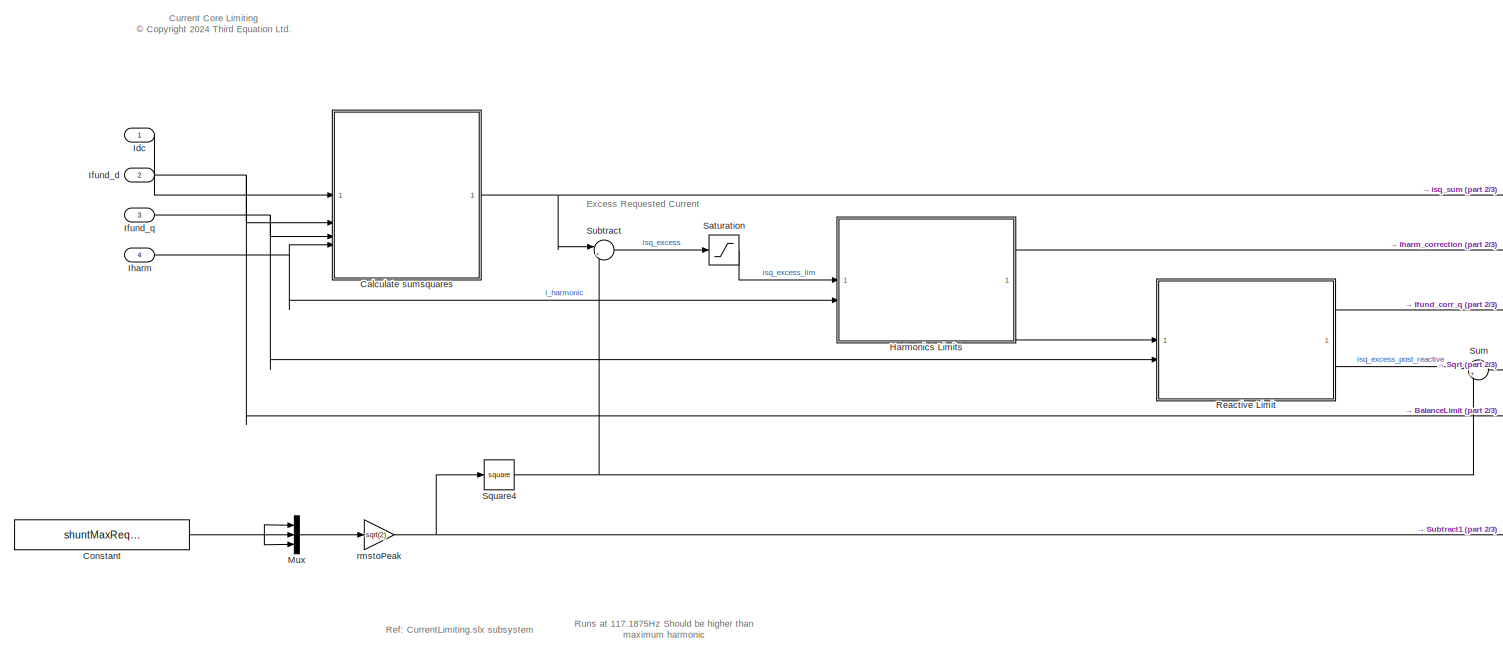
[diagram: root canvas - part 1/3, center side, full height]
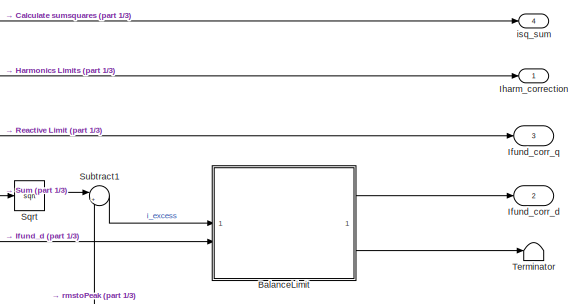
[diagram: root canvas - part 2/3, middle right region]
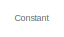
[diagram: root canvas - part 3/3, bottom left region]
MODEL slx_2df82c6ad651
KIND model
BLOCK [SubSystem] BalanceLimit
  ReferencedSubsystem = BalanceLimit
  TreatAsAtomicUnit = on
BLOCK [SubSystem] Calculate sumsquares
  ReferencedSubsystem = Calculate_sumsquares
BLOCK [Constant] Constant
  OutDataTypeStr = single
  Value = shuntMaxRequestedCurrentrms
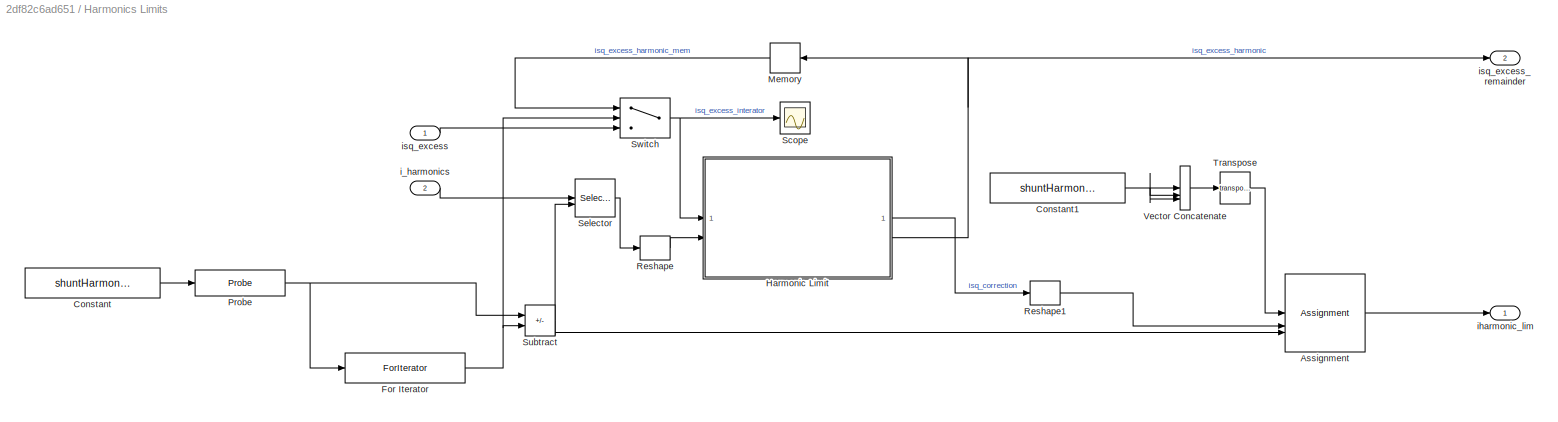
BLOCK [SubSystem] Harmonics Limits
  TreatAsAtomicUnit = on
BLOCK [Assignment] Harmonics Limits/Assignment
  DiagnosticForDimensions = Warning
  IndexOptions = Assign all,Index vector (port)
  Indices = 1,1
  NumberOfDimensions = 2
  OutputSizes = 3,nHarmonics
BLOCK [Constant] Harmonics Limits/Constant
  OutDataTypeStr = single
  Value = shuntHarmonicsCorrected
BLOCK [Constant] Harmonics Limits/Constant1
  OutDataTypeStr = single
  Value = shuntHarmonicsCorrected
BLOCK [ForIterator] Harmonics Limits/For Iterator
  IndexMode = Zero-based
  IterationLimit = nHarmonics
  IterationSource = external
  ResetStates = reset
BLOCK [SubSystem] Harmonics Limits/Harmonic  Limit
  PortSchema = {"entries":[{"content":{"sides":[{"content":{"connectorIds":["In1","In2"]},"type":"ConnectorPlacement.EquallySpacedRectSide","uuid":"a0edda42-1093-4dc5-a0fa-0d45baad0397"},{"content":{"connectorIds":["Out2","Out1"],"side":"RIGHT"},"type":"ConnectorPlacement.EquallySpacedRectSide","uuid":"9461ca2c-2d49-476d-8dbf-46c4cd226d1a"},{"content":{"side":"TOP"},"type":"ConnectorPlacement.EquallySpacedRectSi...<+235ch>
  ReferencedSubsystem = rmsLimit
  TreatAsAtomicUnit = on
BLOCK [Memory] Harmonics Limits/Memory
  InheritSampleTime = on
BLOCK [Probe] Harmonics Limits/Probe
  ProbeComplexSignal = off
  ProbeDimensionsDataType = single
  ProbeSampleTime = off
  ProbeSignalDimensions = on
  ProbeWidth = off
BLOCK [Reshape] Harmonics Limits/Reshape
BLOCK [Reshape] Harmonics Limits/Reshape1
  OutputDimensionality = Column vector (2-D)
BLOCK [Scope] Harmonics Limits/Scope
  Commented = on
  Floating = off
  NumInputPorts = 1
  ScopeSpecificationString = Simulink.scopes.TimeScopeBlockCfg('CurrentConfiguration', extmgr.ConfigurationSet(extmgr.Configuration('Core','General UI',true),extmgr.Configuration('Core','Source UI',true),extmgr.Configuration('Sources','WiredSimulink',true,'DataLoggingVariableName','ScopeData1'),extmgr.Configuration('Visuals','Time Domain',true,'SerializedDisplays',{struct('MinYLimReal','-1328.125','MaxYLimReal','11953.125','Y...<+1443ch>
BLOCK [Selector] Harmonics Limits/Selector
  IndexOptions = Select all,Index vector (port)
  Indices = [1 3],1
  InputPortWidth = 1
  NumberOfDimensions = 2
  OutputSizes = 1,1
BLOCK [Sum] Harmonics Limits/Subtract
  IconShape = rectangular
  Inputs = +-
BLOCK [Switch] Harmonics Limits/Switch
  Criteria = u2 ~= 0
  InputSameDT = off
  SaturateOnIntegerOverflow = off
  Threshold = 1
BLOCK [Math] Harmonics Limits/Transpose
  Operator = transpose
BLOCK [Concatenate] Harmonics Limits/Vector Concatenate
  ConcatenateDimension = 2
  Mode = Multidimensional array
  NumInputs = 3
BLOCK [Inport] Harmonics Limits/i_harmonics
  Port = 2
  PortDimensions = [3 shuntNumHarmonics]
BLOCK [Outport] Harmonics Limits/iharmonic_lim
  OutDataTypeStr = single
  PortDimensions = [3 shuntNumHarmonics]
BLOCK [Inport] Harmonics Limits/isq_excess
  PortDimensions = 3
BLOCK [Outport] Harmonics Limits/isq_excess_remainder
  OutDataTypeStr = single
  Port = 2
  PortDimensions = 3
BLOCK [Inport] Idc
  OutDataTypeStr = single
  PortDimensions = 3
  VarSizeSig = No
BLOCK [Outport] Ifund_corr_d
  OutDataTypeStr = single
  Port = 2
  PortDimensions = 3
BLOCK [Outport] Ifund_corr_q
  OutDataTypeStr = single
  Port = 3
  PortDimensions = 3
BLOCK [Inport] Ifund_d
  OutDataTypeStr = single
  Port = 2
  PortDimensions = 3
  VarSizeSig = No
BLOCK [Inport] Ifund_q
  OutDataTypeStr = single
  Port = 3
  PortDimensions = 3
  VarSizeSig = No
BLOCK [Inport] Iharm
  OutDataTypeStr = single
  Port = 4
  PortDimensions = [3 shuntNumHarmonics]
  VarSizeSig = No
BLOCK [Outport] Iharm_correction
  OutDataTypeStr = single
  PortDimensions = [3 shuntNumHarmonics]
BLOCK [Mux] Mux
  DisplayOption = bar
  Inputs = 3
BLOCK [SubSystem] Reactive  Limit
  ReferencedSubsystem = rmsLimit
  TreatAsAtomicUnit = on
BLOCK [Saturate] Saturation
  LowerLimit = 0
  UpperLimit = inf
BLOCK [Sqrt] Sqrt
BLOCK [Math] Square4
  Operator = square
BLOCK [Sum] Subtract
  Inputs = |+-
BLOCK [Sum] Subtract1
  Inputs = |+-
BLOCK [Sum] Sum
  Inputs = |++
BLOCK [Terminator] Terminator
BLOCK [Outport] isq_sum
  OutDataTypeStr = single
  Port = 4
  PortDimensions = 3
BLOCK [Gain] rmstoPeak
  Gain = sqrt(2)
ANNOTATION (root): Current Core Limiting <copyright redacted>
ANNOTATION (root): Excess Requested Current
ANNOTATION (root): Constant
ANNOTATION (root): Runs at 117.1875Hz Should be higher than maximum harmonic
ANNOTATION (root): Ref: CurrentLimiting.slx subsystem
LINE BalanceLimit:1 -> Ifund_corr_d:1
LINE BalanceLimit:2 -> Terminator:1
NET Calculate sumsquares:1 -> Subtract:1, isq_sum:1
NET Constant:1 -> Mux:1, Mux:2, Mux:3
LINE Harmonics Limits/Assignment:1 -> Harmonics Limits/iharmonic_lim:1
NET Harmonics Limits/Constant1:1 -> Harmonics Limits/Vector Concatenate:1, Harmonics Limits/Vector Concatenate:2, Harmonics Limits/Vector Concatenate:3
LINE Harmonics Limits/Constant:1 -> Harmonics Limits/Probe:1
NET Harmonics Limits/For Iterator:1 -> Harmonics Limits/Subtract:2, Harmonics Limits/Switch:2
LINE Harmonics Limits/Harmonic  Limit:1 -> Harmonics Limits/Reshape1:1
NET Harmonics Limits/Harmonic  Limit:2 -> Harmonics Limits/Memory:1, Harmonics Limits/isq_excess_remainder:1
LINE Harmonics Limits/Memory:1 -> Harmonics Limits/Switch:1
NET Harmonics Limits/Probe:1 -> Harmonics Limits/For Iterator:1, Harmonics Limits/Subtract:1
LINE Harmonics Limits/Reshape1:1 -> Harmonics Limits/Assignment:2
LINE Harmonics Limits/Reshape:1 -> Harmonics Limits/Harmonic  Limit:2
LINE Harmonics Limits/Selector:1 -> Harmonics Limits/Reshape:1
NET Harmonics Limits/Subtract:1 -> Harmonics Limits/Assignment:3, Harmonics Limits/Selector:2
NET Harmonics Limits/Switch:1 -> Harmonics Limits/Harmonic  Limit:1, Harmonics Limits/Scope:1
LINE Harmonics Limits/Transpose:1 -> Harmonics Limits/Assignment:1
LINE Harmonics Limits/Vector Concatenate:1 -> Harmonics Limits/Transpose:1
LINE Harmonics Limits/i_harmonics:1 -> Harmonics Limits/Selector:1
LINE Harmonics Limits/isq_excess:1 -> Harmonics Limits/Switch:3
LINE Harmonics Limits:1 -> Iharm_correction:1
LINE Harmonics Limits:2 -> Reactive  Limit:1
LINE Idc:1 -> Calculate sumsquares:1
NET Ifund_d:1 -> BalanceLimit:2, Calculate sumsquares:2
NET Ifund_q:1 -> Calculate sumsquares:3, Reactive  Limit:2
NET Iharm:1 -> Calculate sumsquares:4, Harmonics Limits:2
LINE Mux:1 -> rmstoPeak:1
LINE Reactive  Limit:1 -> Ifund_corr_q:1
LINE Reactive  Limit:2 -> Sum:1
LINE Saturation:1 -> Harmonics Limits:1
LINE Sqrt:1 -> Subtract1:1
NET Square4:1 -> Subtract:2, Sum:2
LINE Subtract1:1 -> BalanceLimit:1
LINE Subtract:1 -> Saturation:1
LINE Sum:1 -> Sqrt:1
NET rmstoPeak:1 -> Square4:1, Subtract1:2
note: NET lines group one-source signal fan-out (src -> all destinations, sorted); 1:1 wires keep LINE
